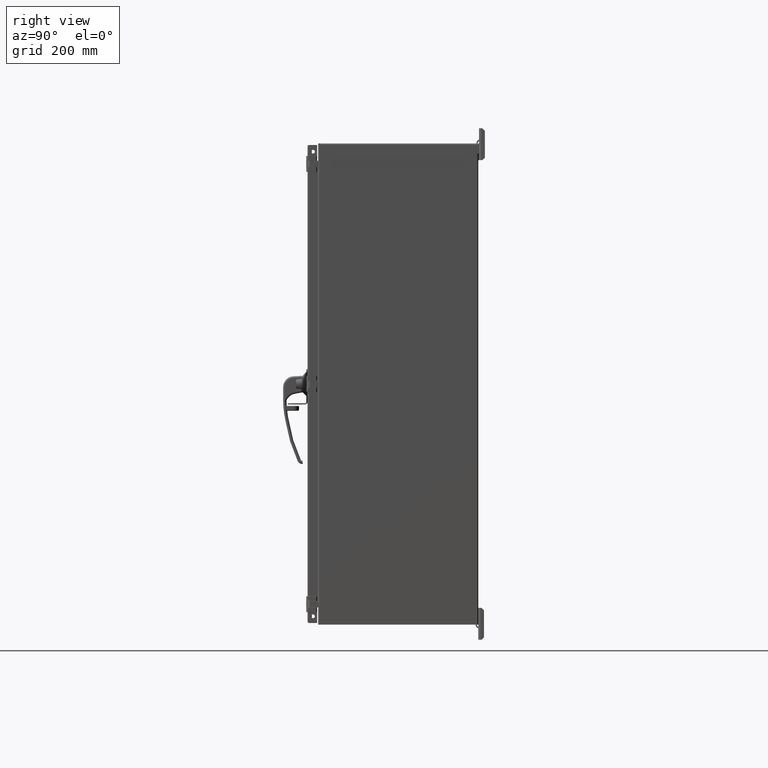
[diagram: clean part render]
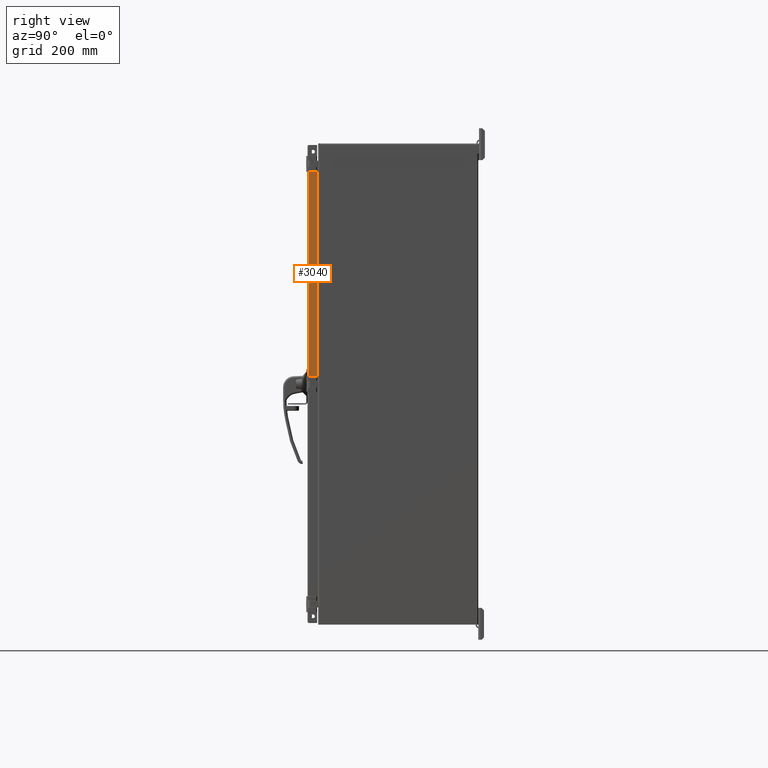
[diagram: same view with one face highlighted and labeled with its STEP entity id]
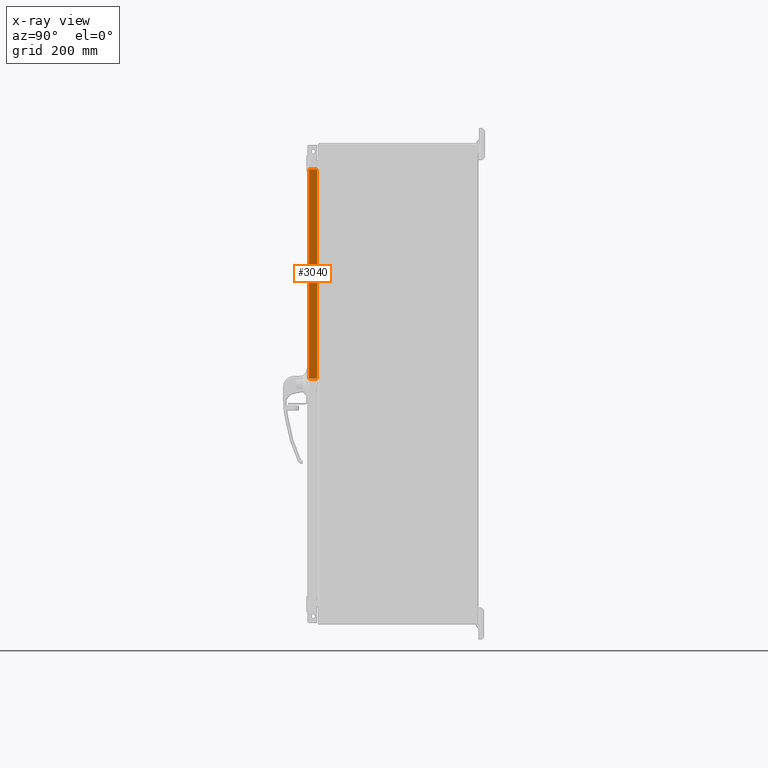
[diagram: x-ray of the same camera — body ghosted, the highlighted face saturated]
A machine part, right view. The second image highlights one B-rep face of the part: STEP entity #3040.
The next image is the same camera in x-ray: the body ghosted, the highlighted face saturated — about 0% of this face is hidden behind the body in this view.
In plain terms, the highlighted planar face has unit normal (-1, -0, 0).
Its self-contained STEP definition (entity closure, byte-faithful):
#3040 = ADVANCED_FACE( '', ( #6769 ), #6770, .F. );
#6769 = FACE_OUTER_BOUND( '', #12789, .T. );
#6770 = PLANE( '', #12790 );
#12789 = EDGE_LOOP( '', ( #24645, #24646, #24647, #24648 ) );
#12790 = AXIS2_PLACEMENT_3D( '', #24649, #24650, #24651 );
#24645 = ORIENTED_EDGE( '', *, *, #36160, .F. );
#24646 = ORIENTED_EDGE( '', *, *, #36413, .T. );
#24647 = ORIENTED_EDGE( '', *, *, #36414, .T. );
#24648 = ORIENTED_EDGE( '', *, *, #36190, .T. );
#24649 = CARTESIAN_POINT( '', ( -224.234375000000, 0.000000000000000, -3170.87885000000 ) );
#24650 = DIRECTION( '', ( 1.00000000000000, -1.22464679914735E-016, 0.000000000000000 ) );
#24651 = DIRECTION( '', ( 1.22464679914735E-016, 1.00000000000000, 0.000000000000000 ) );
#36160 = EDGE_CURVE( '', #42445, #42446, #42447, .T. );
#36190 = EDGE_CURVE( '', #42490, #42446, #42491, .T. );
#36413 = EDGE_CURVE( '', #42445, #42810, #42811, .T. );
#36414 = EDGE_CURVE( '', #42810, #42490, #42812, .T. );
#42445 = VERTEX_POINT( '', #55220 );
#42446 = VERTEX_POINT( '', #55221 );
#42447 = LINE( '', #55222, #55223 );
#42490 = VERTEX_POINT( '', #55311 );
#42491 = LINE( '', #55312, #55313 );
#42810 = VERTEX_POINT( '', #56193 );
#42811 = LINE( '', #56194, #56195 );
#42812 = LINE( '', #56196, #56197 );
#55220 = CARTESIAN_POINT( '', ( -224.234375000000, 18.2626000000000, -408.787600000000 ) );
#55221 = CARTESIAN_POINT( '', ( -224.234375000000, 18.2626000000000, -10.3123999999998 ) );
#55222 = CARTESIAN_POINT( '', ( -224.234375000000, 18.2626000000000, -3170.87885000000 ) );
#55223 = VECTOR( '', #63992, 1000.00000000000 );
#55311 = CARTESIAN_POINT( '', ( -224.234375000000, 2.33680000000000, -10.3124000000000 ) );
#55312 = CARTESIAN_POINT( '', ( -224.234375000000, 0.000000000000000, -10.3123999999998 ) );
#55313 = VECTOR( '', #64015, 1000.00000000000 );
#56193 = CARTESIAN_POINT( '', ( -224.234375000000, 2.33680000000000, -408.787600000000 ) );
#56194 = CARTESIAN_POINT( '', ( -224.234375000000, 0.000000000000000, -408.787600000000 ) );
#56195 = VECTOR( '', #64167, 1000.00000000000 );
#56196 = CARTESIAN_POINT( '', ( -224.234375000000, 2.33680000000000, -3170.87885000000 ) );
#56197 = VECTOR( '', #64168, 1000.00000000000 );
#63992 = DIRECTION( '', ( 0.000000000000000, 0.000000000000000, 1.00000000000000 ) );
#64015 = DIRECTION( '', ( 1.22464679914735E-016, 1.00000000000000, 0.000000000000000 ) );
#64167 = DIRECTION( '', ( -1.22464679914735E-016, -1.00000000000000, 0.000000000000000 ) );
#64168 = DIRECTION( '', ( 0.000000000000000, 0.000000000000000, 1.00000000000000 ) );